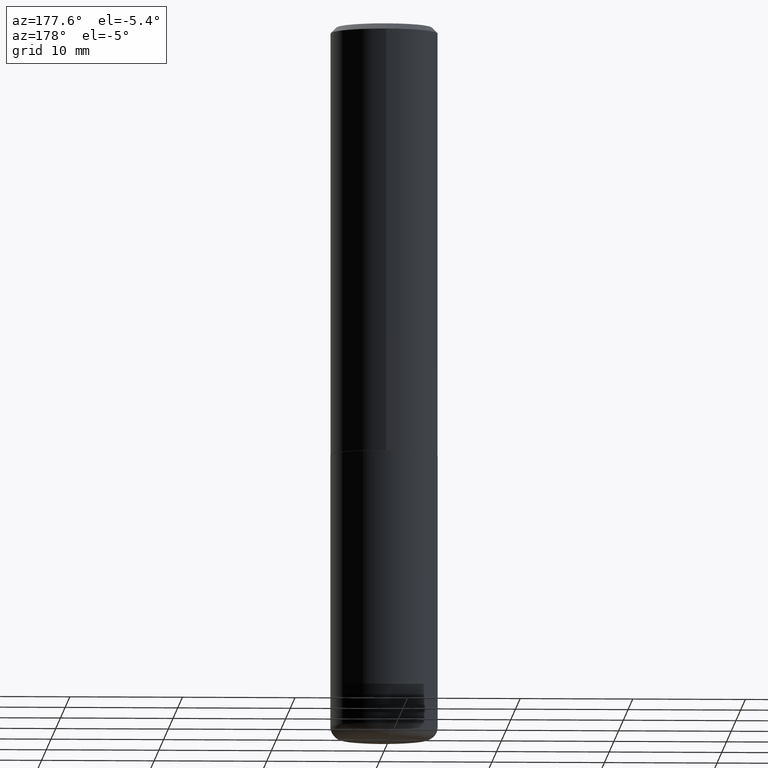
[diagram: clean part render]
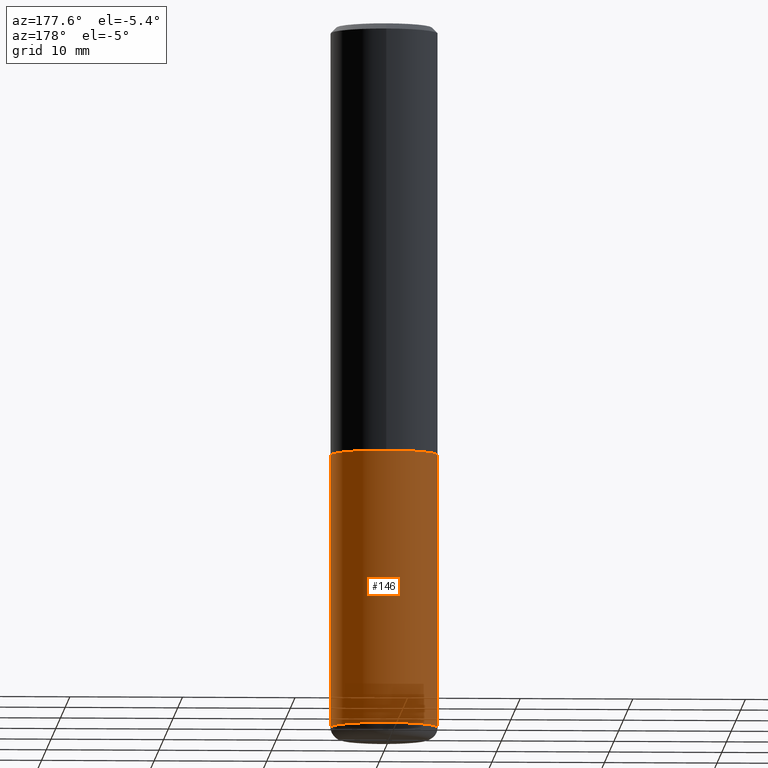
[diagram: same view with one face highlighted and labeled with its STEP entity id]
A machine part, auxiliary view. The second image highlights one B-rep face of the part: STEP entity #146.
In plain terms, the highlighted cylindrical surface (partial cylindrical patch) has radius 4.7625 mm, axis along (-0, 0, 1).
Its self-contained STEP definition (entity closure, byte-faithful):
#2 = VERTEX_POINT ( 'NONE', #164 ) ;
#21 = EDGE_CURVE ( 'NONE', #2, #255, #216, .T. ) ;
#28 = ORIENTED_EDGE ( 'NONE', *, *, #21, .F. ) ;
#31 = EDGE_CURVE ( 'NONE', #315, #383, #266, .T. ) ;
#47 = CYLINDRICAL_SURFACE ( 'NONE', #238, 0.1875000000000000278 ) ;
#50 = FACE_OUTER_BOUND ( 'NONE', #257, .T. ) ;
#59 = AXIS2_PLACEMENT_3D ( 'NONE', #297, #208, #268 ) ;
#78 = ORIENTED_EDGE ( 'NONE', *, *, #341, .F. ) ;
#80 = DIRECTION ( 'NONE',  ( 1.000000000000000000, -6.982962677686265922E-15, 4.876176775795935793E-29 ) ) ;
#82 = VECTOR ( 'NONE', #302, 39.37007874015748143 ) ;
#86 = DIRECTION ( 'NONE',  ( -2.445468806185136597E-29, 3.491481338843145583E-15, 1.000000000000000000 ) ) ;
#96 = CARTESIAN_POINT ( 'NONE',  ( -0.1874999999999999722, -7.239319057309735462E-15, -2.455000000000000071 ) ) ;
#98 = ORIENTED_EDGE ( 'NONE', *, *, #31, .T. ) ;
#126 = ORIENTED_EDGE ( 'NONE', *, *, #141, .T. ) ;
#141 = EDGE_CURVE ( 'NONE', #383, #255, #400, .T. ) ;
#142 = CARTESIAN_POINT ( 'NONE',  ( 0.000000000000000000, 0.000000000000000000, 0.000000000000000000 ) ) ;
#146 = ADVANCED_FACE ( 'NONE', ( #50 ), #47, .T. ) ;
#147 = CARTESIAN_POINT ( 'NONE',  ( -0.1875000000000000278, 1.332267629550188046E-15, -9.223003294227947991E-30 ) ) ;
#164 = CARTESIAN_POINT ( 'NONE',  ( 0.1875000000000000278, -6.546527510330893974E-15, -1.500000000000000222 ) ) ;
#172 = DIRECTION ( 'NONE',  ( 1.000000000000000000, -6.982962677686266711E-15, 0.000000000000000000 ) ) ;
#199 = CARTESIAN_POINT ( 'NONE',  ( 3.668203209277704895E-29, -5.237222008264718177E-15, -1.500000000000000222 ) ) ;
#208 = DIRECTION ( 'NONE',  ( -2.445468806185136597E-29, 3.491481338843145583E-15, 1.000000000000000000 ) ) ;
#215 = VECTOR ( 'NONE', #316, 39.37007874015748143 ) ;
#216 = CIRCLE ( 'NONE', #260, 0.1875000000000000278 ) ;
#219 = LINE ( 'NONE', #385, #215 ) ;
#238 = AXIS2_PLACEMENT_3D ( 'NONE', #142, #86, #80 ) ;
#244 = CARTESIAN_POINT ( 'NONE',  ( -0.1875000000000000278, -5.572136718012132501E-15, -1.500000000000000222 ) ) ;
#255 = VERTEX_POINT ( 'NONE', #244 ) ;
#257 = EDGE_LOOP ( 'NONE', ( #98, #126, #28, #78 ) ) ;
#260 = AXIS2_PLACEMENT_3D ( 'NONE', #199, #329, #172 ) ;
#266 = CIRCLE ( 'NONE', #59, 0.1875000000000000278 ) ;
#268 = DIRECTION ( 'NONE',  ( 1.000000000000000000, -6.982962677686266711E-15, 0.000000000000000000 ) ) ;
#297 = CARTESIAN_POINT ( 'NONE',  ( 6.003625919184510659E-29, -8.571586686859923311E-15, -2.455000000000000071 ) ) ;
#302 = DIRECTION ( 'NONE',  ( -2.445468806185136877E-29, 3.491481338843145188E-15, 1.000000000000000000 ) ) ;
#315 = VERTEX_POINT ( 'NONE', #406 ) ;
#316 = DIRECTION ( 'NONE',  ( -2.445468806185136877E-29, 3.491481338843145188E-15, 1.000000000000000000 ) ) ;
#329 = DIRECTION ( 'NONE',  ( -2.445468806185136597E-29, 3.491481338843145583E-15, 1.000000000000000000 ) ) ;
#341 = EDGE_CURVE ( 'NONE', #315, #2, #219, .T. ) ;
#383 = VERTEX_POINT ( 'NONE', #96 ) ;
#385 = CARTESIAN_POINT ( 'NONE',  ( 0.1875000000000000278, -1.309305502066175008E-15, 9.142831454617381013E-30 ) ) ;
#400 = LINE ( 'NONE', #147, #82 ) ;
#406 = CARTESIAN_POINT ( 'NONE',  ( 0.1874999999999999722, -9.880892188926098319E-15, -2.455000000000000071 ) ) ;